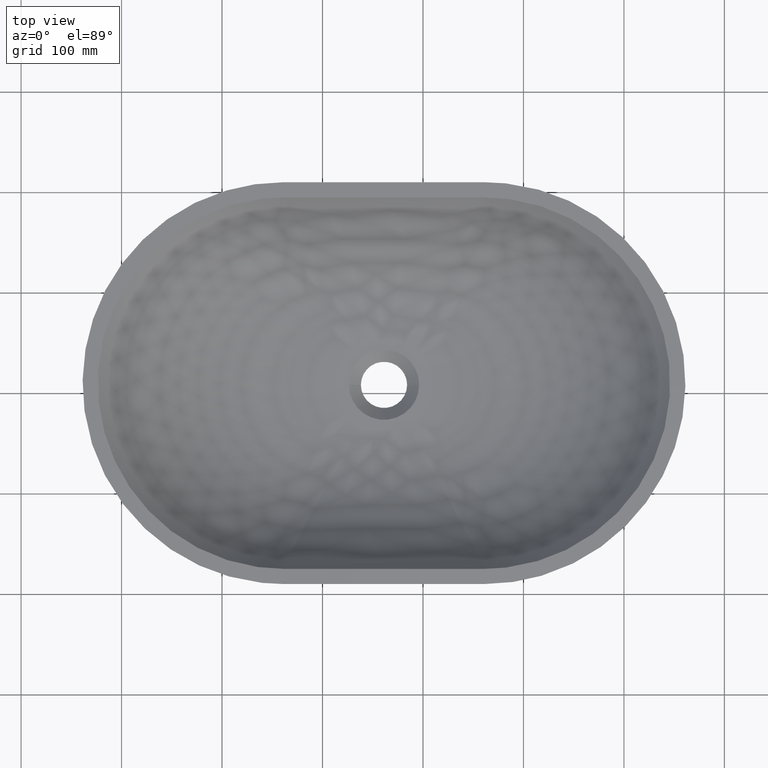
[diagram: clean part render]
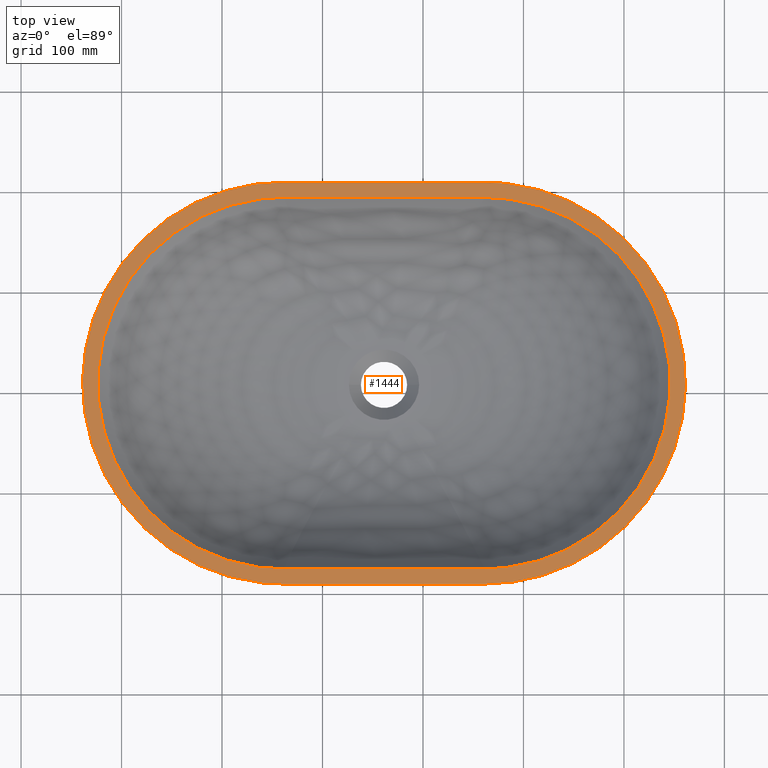
[diagram: same view with one face highlighted and labeled with its STEP entity id]
A machine part, top view. The second image highlights one B-rep face of the part: STEP entity #1444.
In plain terms, the highlighted planar face has unit normal (0, 0, 1).
Its self-contained STEP definition (entity closure, byte-faithful):
#5 = VECTOR ( 'NONE', #545, 1000.000000000000000 ) ;
#10 = VERTEX_POINT ( 'NONE', #504 ) ;
#25 = VERTEX_POINT ( 'NONE', #989 ) ;
#34 = CARTESIAN_POINT ( 'NONE',  ( -60.61192556270950100, 148.7361464839234500, 115.1817957095351900 ) ) ;
#40 = CARTESIAN_POINT ( 'NONE',  ( 56.49416635617522800, 193.3661969212668300, 115.1817957095351800 ) ) ;
#53 = VERTEX_POINT ( 'NONE', #741 ) ;
#57 = CARTESIAN_POINT ( 'NONE',  ( 61.25352625135712300, 193.3659434360993400, 115.1817957095353500 ) ) ;
#64 = CARTESIAN_POINT ( 'NONE',  ( 10.74161822885639800, 203.1963136500938800, 115.1817957095417900 ) ) ;
#67 = CARTESIAN_POINT ( 'NONE',  ( 16.58033270171394900, 188.6821975297097300, 115.1817957095351700 ) ) ;
#99 = VERTEX_POINT ( 'NONE', #1542 ) ;
#118 = CARTESIAN_POINT ( 'NONE',  ( 461.5336809680192700, -11.70850152895343900, 115.1817957095416500 ) ) ;
#128 = EDGE_LOOP ( 'NONE', ( #597, #990, #874, #1187 ) ) ;
#129 = CARTESIAN_POINT ( 'NONE',  ( 438.2409383776819100, 104.1543125189290300, 115.1817957095416000 ) ) ;
#131 = CARTESIAN_POINT ( 'NONE',  ( -71.63758920375836700, 159.0235303197477200, 115.1817957095417900 ) ) ;
#138 = CARTESIAN_POINT ( 'NONE',  ( 161.1991770534109200, -191.5128784895728100, 115.1817957095352100 ) ) ;
#152 = VECTOR ( 'NONE', #1399, 1000.000000000000000 ) ;
#167 = CARTESIAN_POINT ( 'NONE',  ( 261.1448278554648800, 193.3659434360993400, 115.1817957095353500 ) ) ;
#203 = CARTESIAN_POINT ( 'NONE',  ( 364.7927421914382100, 180.5526231723714500, 115.1817957095416000 ) ) ;
#207 = ORIENTED_EDGE ( 'NONE', *, *, #1083, .T. ) ;
#208 = CARTESIAN_POINT ( 'NONE',  ( 337.6708723989952400, 194.0228451808495400, 115.1817957095416500 ) ) ;
#212 = CARTESIAN_POINT ( 'NONE',  ( -56.78277687686650000, -135.7206937010476500, 115.1817957095351800 ) ) ;
#219 = CARTESIAN_POINT ( 'NONE',  ( -83.56933736362040600, 125.0717341970164000, 115.1817957095351400 ) ) ;
#232 = VERTEX_POINT ( 'NONE', #1113 ) ;
#239 = CARTESIAN_POINT ( 'NONE',  ( 453.5193352562616800, 67.98513829976954500, 115.1817957095416700 ) ) ;
#272 = CARTESIAN_POINT ( 'NONE',  ( -35.74889015185740200, 166.7909275831100300, 115.1817957095351200 ) ) ;
#273 = CARTESIAN_POINT ( 'NONE',  ( 285.1678583745950800, 207.3670872552345400, 115.1817957095416300 ) ) ;
#279 = CARTESIAN_POINT ( 'NONE',  ( 42.52687622973317600, 208.1928158879708000, 115.1817957095417900 ) ) ;
#285 = CARTESIAN_POINT ( 'NONE',  ( 308.1316243370708900, 203.7421003496828900, 115.1817957095416000 ) ) ;
#291 = VERTEX_POINT ( 'NONE', #1472 ) ;
#293 = CARTESIAN_POINT ( 'NONE',  ( 391.9406171353136900, 161.1548388170242000, 115.1817957095416200 ) ) ;
#304 = CARTESIAN_POINT ( 'NONE',  ( 265.9041877506471100, -176.3919539004494700, 115.1817957095352400 ) ) ;
#305 = B_SPLINE_CURVE_WITH_KNOTS ( 'NONE', 3,
 ( #725, #502, #899, #1134, #1227, #1371, #1512, #167 ),
 .UNSPECIFIED., .F., .F.,
 ( 4, 2, 2, 4 ),
 ( 0.0000000000000000000, 0.04997282542251418900, 0.1249320635562855800, 0.1998913016900569200 ),
 .UNSPECIFIED. ) ;
#310 = ORIENTED_EDGE ( 'NONE', *, *, #1411, .T. ) ;
#317 = CARTESIAN_POINT ( 'NONE',  ( 461.5300431340216400, 28.68215636889372200, 115.1817957095416300 ) ) ;
#347 = CARTESIAN_POINT ( 'NONE',  ( 425.1962089026555400, -79.18575149508822600, 115.1817957095352200 ) ) ;
#399 = CARTESIAN_POINT ( 'NONE',  ( 37.23077292421371000, -190.3928124741749700, 115.1817957095418200 ) ) ;
#410 = FACE_OUTER_BOUND ( 'NONE', #128, .T. ) ;
#415 = LINE ( 'NONE', #138, #152 ) ;
#416 = ORIENTED_EDGE ( 'NONE', *, *, #649, .T. ) ;
#424 = CARTESIAN_POINT ( 'NONE',  ( 279.3225402225500600, -176.0673003552144600, 115.1817957095352500 ) ) ;
#432 = CARTESIAN_POINT ( 'NONE',  ( -21.96305465923037700, 191.5028348330286600, 115.1817957095417900 ) ) ;
#461 = CARTESIAN_POINT ( 'NONE',  ( 58.81822467245670800, -191.5128784895763100, 115.1817957095418300 ) ) ;
#479 = CARTESIAN_POINT ( 'NONE',  ( 43.07581187548812800, 193.0410983710836200, 115.1817957095351800 ) ) ;
#481 = AXIS2_PLACEMENT_3D ( 'NONE', #1533, #1303, #1317 ) ;
#482 = CARTESIAN_POINT ( 'NONE',  ( -10.78688942976676100, 179.4376817148611600, 115.1817957095351800 ) ) ;
#484 = CARTESIAN_POINT ( 'NONE',  ( 43.07279658511280500, -176.0653268974612000, 115.1817957095351400 ) ) ;
#486 = CARTESIAN_POINT ( 'NONE',  ( -49.22370228021378600, 175.8340119829753400, 115.1817957095417900 ) ) ;
#488 = CARTESIAN_POINT ( 'NONE',  ( -23.01016818544261600, -157.8687333612659200, 115.1817957095351700 ) ) ;
#490 = CARTESIAN_POINT ( 'NONE',  ( 261.1991770534109500, 208.4871215104271900, 115.1817957095352100 ) ) ;
#491 = CARTESIAN_POINT ( 'NONE',  ( -83.56923668714137000, -108.0947487825566600, 115.1817957095352500 ) ) ;
#492 = CARTESIAN_POINT ( 'NONE',  ( 13.27293077981662400, -171.1633457057354800, 115.1817957095351800 ) ) ;
#497 = CARTESIAN_POINT ( 'NONE',  ( -102.7978964869850100, 96.16015365069269200, 115.1817957095351200 ) ) ;
#502 = CARTESIAN_POINT ( 'NONE',  ( 77.91128658456533200, 193.3650619584009900, 115.1817957095351900 ) ) ;
#503 = CARTESIAN_POINT ( 'NONE',  ( -116.6687985316302700, 62.97149256976440800, 115.1817957095351700 ) ) ;
#504 = CARTESIAN_POINT ( 'NONE',  ( 61.19917705341095600, -191.5128784895728100, 115.1817957095352100 ) ) ;
#507 = CARTESIAN_POINT ( 'NONE',  ( -123.9329679121835100, 26.97352634829886100, 115.1817957095351900 ) ) ;
#514 = CARTESIAN_POINT ( 'NONE',  ( -123.9360966759568800, -9.999735005459843500, 115.1817957095351900 ) ) ;
#518 = CARTESIAN_POINT ( 'NONE',  ( -116.6666459752446300, -45.99517196044517700, 115.1817957095352400 ) ) ;
#519 = CARTESIAN_POINT ( 'NONE',  ( 56.49416607286459400, -176.3919538216564400, 115.1817957095351800 ) ) ;
#520 = CARTESIAN_POINT ( 'NONE',  ( -102.7977174638970400, -79.18967452623115800, 115.1817957095351400 ) ) ;
#537 = VERTEX_POINT ( 'NONE', #585 ) ;
#545 = DIRECTION ( 'NONE',  ( -1.000000000000000000, -0.0000000000000000000, 0.0000000000000000000 ) ) ;
#585 = CARTESIAN_POINT ( 'NONE',  ( 61.25352625135712300, 193.3659434360993400, 115.1817957095353500 ) ) ;
#597 = ORIENTED_EDGE ( 'NONE', *, *, #1000, .T. ) ;
#599 = B_SPLINE_CURVE_WITH_KNOTS ( 'NONE', 3,
 ( #1375, #1491, #1087, #636, #1380, #1235, #1105, #1476, #1108, #656, #118, #317, #239, #129, #818, #293, #203, #208, #285, #273, #715, #1397, #490 ),
 .UNSPECIFIED., .F., .F.,
 ( 4, 1, 1, 1, 1, 1, 1, 1, 1, 1, 1, 1, 1, 1, 1, 1, 1, 1, 1, 1, 4 ),
 ( 0.0000000000000000000, 0.04446632552540475500, 0.08893265105080958000, 0.1333989765762143800, 0.1556321393389167600, 0.1778653021016191600, 0.2075095191185556100, 0.2371537361354921800, 0.2667979531524286600, 0.2964421701693651900, 0.3260863871863016700, 0.3557306042032381500, 0.3853748212201746900, 0.4150190382371112300, 0.4446632552540477100, 0.4743074722709841900, 0.5039516892879207800, 0.5335959063048573100, 0.5780622318302620600, 0.6002953945929644400, 0.6225285573556668100 ),
 .UNSPECIFIED. ) ;
#617 = CARTESIAN_POINT ( 'NONE',  ( 161.1991916407784500, -176.3888257209593700, 115.1817957095352400 ) ) ;
#636 = CARTESIAN_POINT ( 'NONE',  ( 311.6569166749463900, -186.2220926743774800, 115.1817957095416000 ) ) ;
#649 = EDGE_CURVE ( 'NONE', #291, #1388, #815, .T. ) ;
#656 = CARTESIAN_POINT ( 'NONE',  ( 453.5178303870797500, -51.01084979318945800, 115.1817957095416300 ) ) ;
#690 = CARTESIAN_POINT ( 'NONE',  ( 261.1448278554647100, -176.3917004152449700, 115.1817957095353900 ) ) ;
#692 = CARTESIAN_POINT ( 'NONE',  ( 439.0648198194157300, 62.96958976007968500, 115.1817957095351900 ) ) ;
#705 = CARTESIAN_POINT ( 'NONE',  ( 161.1991770534109500, 208.4871215104271900, 115.1817957095352100 ) ) ;
#713 = CARTESIAN_POINT ( 'NONE',  ( 446.3344963352358300, 26.97441046883320900, 115.1817957095352400 ) ) ;
#715 = CARTESIAN_POINT ( 'NONE',  ( 269.4386677526191500, 208.4058809125665400, 115.1817957095415600 ) ) ;
#725 = CARTESIAN_POINT ( 'NONE',  ( 61.25352625135712300, 193.3659434360993400, 115.1817957095353500 ) ) ;
#728 = EDGE_CURVE ( 'NONE', #53, #99, #599, .T. ) ;
#731 = CARTESIAN_POINT ( 'NONE',  ( 56.43727229150431400, 208.4871215104307700, 115.1817957095418300 ) ) ;
#735 = CARTESIAN_POINT ( 'NONE',  ( 61.19917705341097000, 208.4871215104271900, 115.1817957095352100 ) ) ;
#736 = CARTESIAN_POINT ( 'NONE',  ( 61.25352625135710800, -176.3917004152449700, 115.1817957095353500 ) ) ;
#741 = CARTESIAN_POINT ( 'NONE',  ( 261.1991770534108400, -191.5128784895728100, 115.1817957095352100 ) ) ;
#743 = CARTESIAN_POINT ( 'NONE',  ( 358.1473053572506700, -149.8167725658331100, 115.1817957095352200 ) ) ;
#793 = CARTESIAN_POINT ( 'NONE',  ( 261.1448278554647100, -176.3917004152449700, 115.1817957095353900 ) ) ;
#805 = CARTESIAN_POINT ( 'NONE',  ( 244.4870675222565200, -176.3908189375466400, 115.1817957095352400 ) ) ;
#815 = B_SPLINE_CURVE_WITH_KNOTS ( 'NONE', 3,
 ( #1367, #890, #1082, #1202, #1140, #1269, #1251, #1363, #692, #713, #1079, #1330, #347, #1457, #925, #743, #1205, #905, #424, #304, #690 ),
 .UNSPECIFIED., .F., .F.,
 ( 4, 1, 1, 1, 1, 1, 1, 1, 1, 1, 1, 1, 1, 1, 1, 1, 1, 1, 4 ),
 ( 0.0000000000000000000, 0.04133533060371028000, 0.08267066120742062900, 0.1240059918111309800, 0.1653413224148412600, 0.1928982094839814300, 0.2204550965531216500, 0.2480119836222618200, 0.2755688706914020700, 0.3031257577605422400, 0.3306826448296824000, 0.3582395318988226300, 0.3857964189679628500, 0.4133533060371030200, 0.4409101931062431900, 0.4684670801753834100, 0.4960239672445236300, 0.5373592978482338900, 0.5786946284519441900 ),
 .UNSPECIFIED. ) ;
#818 = CARTESIAN_POINT ( 'NONE',  ( 417.1042020559526100, 135.5640569853788100, 115.1817957095416200 ) ) ;
#847 = FACE_BOUND ( 'NONE', #1168, .T. ) ;
#860 = CARTESIAN_POINT ( 'NONE',  ( -131.1194860979992100, 67.98496691828391600, 115.1817957095417700 ) ) ;
#874 = ORIENTED_EDGE ( 'NONE', *, *, #1110, .T. ) ;
#878 = CARTESIAN_POINT ( 'NONE',  ( -115.8430996472398100, 104.1556655501851800, 115.1817957095417900 ) ) ;
#890 = CARTESIAN_POINT ( 'NONE',  ( 265.9041880337533100, 193.3661968537024900, 115.1817957095352400 ) ) ;
#899 = CARTESIAN_POINT ( 'NONE',  ( 94.56893450332880500, 193.3643827014639700, 115.1817957095351900 ) ) ;
#905 = CARTESIAN_POINT ( 'NONE',  ( 305.8180387162530000, -171.7082193614270700, 115.1817957095352400 ) ) ;
#908 = CARTESIAN_POINT ( 'NONE',  ( 86.24016675116946800, -176.3903781986974800, 115.1817957095352400 ) ) ;
#925 = CARTESIAN_POINT ( 'NONE',  ( 383.0103344354116600, -131.7619236983447600, 115.1817957095352400 ) ) ;
#928 = EDGE_CURVE ( 'NONE', #25, #537, #1322, .T. ) ;
#931 = CARTESIAN_POINT ( 'NONE',  ( -139.1352871784866900, 28.68264538898372600, 115.1817957095418300 ) ) ;
#936 = CARTESIAN_POINT ( 'NONE',  ( -94.70480956048398000, 135.5632534018114700, 115.1817957095417700 ) ) ;
#985 = CARTESIAN_POINT ( 'NONE',  ( -69.54234035034770000, -144.1805549412160600, 115.1817957095417700 ) ) ;
#989 = CARTESIAN_POINT ( 'NONE',  ( 61.25352625135710800, -176.3917004152449700, 115.1817957095353500 ) ) ;
#990 = ORIENTED_EDGE ( 'NONE', *, *, #728, .T. ) ;
#995 = CARTESIAN_POINT ( 'NONE',  ( 61.19917705341095600, -191.5128784895728100, 115.1817957095352100 ) ) ;
#1000 = EDGE_CURVE ( 'NONE', #10, #53, #415, .T. ) ;
#1020 = EDGE_CURVE ( 'NONE', #232, #10, #1334, .T. ) ;
#1027 = LINE ( 'NONE', #705, #5 ) ;
#1036 = B_SPLINE_CURVE_WITH_KNOTS ( 'NONE', 3,
 ( #793, #805, #1170, #1540, #617, #1530, #908, #1212 ),
 .UNSPECIFIED., .F., .F.,
 ( 4, 2, 2, 4 ),
 ( 0.0000000000000000000, 0.04997282542251421700, 0.1249320635562855000, 0.1998913016900568700 ),
 .UNSPECIFIED. ) ;
#1079 = CARTESIAN_POINT ( 'NONE',  ( 446.3311698784637000, -9.999131604614058600, 115.1817957095351900 ) ) ;
#1082 = CARTESIAN_POINT ( 'NONE',  ( 279.3257102002136200, 193.0396114092008300, 115.1817957095352400 ) ) ;
#1083 = EDGE_CURVE ( 'NONE', #537, #291, #305, .T. ) ;
#1087 = CARTESIAN_POINT ( 'NONE',  ( 279.8716070780013800, -191.2189114930829700, 115.1817957095416900 ) ) ;
#1105 = CARTESIAN_POINT ( 'NONE',  ( 394.0358852470306500, -142.0494228537468200, 115.1817957095416300 ) ) ;
#1108 = CARTESIAN_POINT ( 'NONE',  ( 438.2413555912855300, -87.18150123071987400, 115.1817957095416500 ) ) ;
#1110 = EDGE_CURVE ( 'NONE', #99, #232, #1027, .T. ) ;
#1113 = CARTESIAN_POINT ( 'NONE',  ( 61.19917705341097000, 208.4871215104271900, 115.1817957095352100 ) ) ;
#1115 = CARTESIAN_POINT ( 'NONE',  ( 261.1448278554647100, -176.3917004152449700, 115.1817957095353900 ) ) ;
#1124 = CARTESIAN_POINT ( 'NONE',  ( 52.95981156355688300, -191.4316134414218300, 115.1817957095418600 ) ) ;
#1134 = CARTESIAN_POINT ( 'NONE',  ( 136.2129086816300100, 193.3632443441196900, 115.1817957095351900 ) ) ;
#1140 = CARTESIAN_POINT ( 'NONE',  ( 345.4086248373045000, 174.8425716759024100, 115.1817957095352400 ) ) ;
#1158 = CARTESIAN_POINT ( 'NONE',  ( -131.1209358780194200, -51.01097972775951200, 115.1817957095418300 ) ) ;
#1168 = EDGE_LOOP ( 'NONE', ( #416, #310, #1261, #207 ) ) ;
#1170 = CARTESIAN_POINT ( 'NONE',  ( 227.8294196034930800, -176.3901396806096200, 115.1817957095352400 ) ) ;
#1175 = CARTESIAN_POINT ( 'NONE',  ( -115.8426147502135600, -87.18021966931651400, 115.1817957095417700 ) ) ;
#1187 = ORIENTED_EDGE ( 'NONE', *, *, #1020, .T. ) ;
#1189 = CARTESIAN_POINT ( 'NONE',  ( -15.27307076551358400, -177.0482148157207700, 115.1817957095418200 ) ) ;
#1202 = CARTESIAN_POINT ( 'NONE',  ( 309.1256268442472200, 188.1373668603124300, 115.1817957095352500 ) ) ;
#1205 = CARTESIAN_POINT ( 'NONE',  ( 333.1852031347311300, -162.4637020082662400, 115.1817957095352400 ) ) ;
#1212 = CARTESIAN_POINT ( 'NONE',  ( 61.25352625135710800, -176.3917004152449700, 115.1817957095353500 ) ) ;
#1218 = CARTESIAN_POINT ( 'NONE',  ( -94.70574496224260500, -118.5898889193056200, 115.1817957095418400 ) ) ;
#1225 = CARTESIAN_POINT ( 'NONE',  ( -139.1317748500289600, -11.70801265905609300, 115.1817957095418400 ) ) ;
#1227 = CARTESIAN_POINT ( 'NONE',  ( 161.1991624660434500, 193.3630687418137200, 115.1817957095351900 ) ) ;
#1235 = CARTESIAN_POINT ( 'NONE',  ( 371.6220459010667100, -158.8599271650874100, 115.1817957095416200 ) ) ;
#1251 = CARTESIAN_POINT ( 'NONE',  ( 405.9672464215202000, 125.0689875127428900, 115.1817957095352200 ) ) ;
#1261 = ORIENTED_EDGE ( 'NONE', *, *, #928, .T. ) ;
#1269 = CARTESIAN_POINT ( 'NONE',  ( 379.1810891621314600, 152.6952077585169400, 115.1817957095352500 ) ) ;
#1272 = PLANE ( 'NONE',  #481 ) ;
#1303 = DIRECTION ( 'NONE',  ( 0.0000000000000000000, 0.0000000000000000000, 1.000000000000000000 ) ) ;
#1317 = DIRECTION ( 'NONE',  ( 1.000000000000000000, 0.0000000000000000000, -0.0000000000000000000 ) ) ;
#1322 = B_SPLINE_CURVE_WITH_KNOTS ( 'NONE', 3,
 ( #736, #519, #484, #492, #488, #212, #491, #520, #518, #514, #507, #503, #497, #219, #34, #272, #482, #67, #479, #40, #57 ),
 .UNSPECIFIED., .F., .F.,
 ( 4, 1, 1, 1, 1, 1, 1, 1, 1, 1, 1, 1, 1, 1, 1, 1, 1, 1, 4 ),
 ( 0.0000000000000000000, 0.04133513235021393100, 0.08267026470042793100, 0.1240053970506419200, 0.1653405294008558600, 0.1928972843009984500, 0.2204540392011411200, 0.2480107941012837100, 0.2755675490014263800, 0.3031243039015689700, 0.3306810588017115600, 0.3582378137018542600, 0.3857945686019969000, 0.4133513235021394900, 0.4409080784022821300, 0.4684648333024247800, 0.4960215882025674200, 0.5373567205527813900, 0.5786918529029953000 ),
 .UNSPECIFIED. ) ;
#1330 = CARTESIAN_POINT ( 'NONE',  ( 439.0671543671018600, -45.99706462106902200, 115.1817957095352400 ) ) ;
#1334 = B_SPLINE_CURVE_WITH_KNOTS ( 'NONE', 3,
 ( #735, #731, #279, #64, #432, #486, #131, #936, #878, #860, #931, #1225, #1158, #1175, #1218, #985, #1423, #1189, #1383, #399, #1124, #461, #995 ),
 .UNSPECIFIED., .F., .F.,
 ( 4, 1, 1, 1, 1, 1, 1, 1, 1, 1, 1, 1, 1, 1, 1, 1, 1, 1, 1, 1, 4 ),
 ( 0.0000000000000000000, 0.04446687870297847500, 0.08893375740595702000, 0.1334006361089355700, 0.1556340754604247900, 0.1778675148119140400, 0.2075121006138996600, 0.2371566864158853600, 0.2668012722178709800, 0.2964458580198566800, 0.3260904438218423200, 0.3557350296238279700, 0.3853796154258136700, 0.4150242012277993200, 0.4446687870297849600, 0.4743133728317706100, 0.5039579586337562500, 0.5336025444357419500, 0.5780694231387204500, 0.6003028624902097000, 0.6225363018416989500 ),
 .UNSPECIFIED. ) ;
#1363 = CARTESIAN_POINT ( 'NONE',  ( 425.1965757820983100, 96.16574351693498100, 115.1817957095352400 ) ) ;
#1367 = CARTESIAN_POINT ( 'NONE',  ( 261.1448278554648800, 193.3659434360993400, 115.1817957095353500 ) ) ;
#1371 = CARTESIAN_POINT ( 'NONE',  ( 211.1718008631997900, 193.3637572995139900, 115.1817957095351900 ) ) ;
#1375 = CARTESIAN_POINT ( 'NONE',  ( 261.1991770534108400, -191.5128784895728100, 115.1817957095352100 ) ) ;
#1380 = CARTESIAN_POINT ( 'NONE',  ( 344.3614970476119800, -174.5286520420284500, 115.1817957095416300 ) ) ;
#1383 = CARTESIAN_POINT ( 'NONE',  ( 14.26762995109548800, -186.7680265341831200, 115.1817957095418400 ) ) ;
#1388 = VERTEX_POINT ( 'NONE', #1115 ) ;
#1397 = CARTESIAN_POINT ( 'NONE',  ( 263.5801294343651800, 208.4871215104306300, 115.1817957095416200 ) ) ;
#1399 = DIRECTION ( 'NONE',  ( 1.000000000000000000, -0.0000000000000000000, -0.0000000000000000000 ) ) ;
#1411 = EDGE_CURVE ( 'NONE', #1388, #25, #1036, .T. ) ;
#1423 = CARTESIAN_POINT ( 'NONE',  ( -42.39415669833131500, -163.5784327464562900, 115.1817957095418200 ) ) ;
#1444 = ADVANCED_FACE ( 'NONE', ( #410, #847 ), #1272, .T. ) ;
#1457 = CARTESIAN_POINT ( 'NONE',  ( 405.9677358684787100, -108.0974049491730000, 115.1817957095352200 ) ) ;
#1472 = CARTESIAN_POINT ( 'NONE',  ( 261.1448278554648800, 193.3659434360993400, 115.1817957095353500 ) ) ;
#1476 = CARTESIAN_POINT ( 'NONE',  ( 417.1030594803969500, -118.5891327006306900, 115.1817957095416300 ) ) ;
#1491 = CARTESIAN_POINT ( 'NONE',  ( 265.9610818153174700, -191.5128784895763100, 115.1817957095416200 ) ) ;
#1512 = CARTESIAN_POINT ( 'NONE',  ( 236.1581873556524400, 193.3646212195518200, 115.1817957095351900 ) ) ;
#1530 = CARTESIAN_POINT ( 'NONE',  ( 111.2265532436221500, -176.3895142786597000, 115.1817957095352400 ) ) ;
#1533 = CARTESIAN_POINT ( 'NONE',  ( 161.1991770534109500, 8.487121510427194000, 115.1817957095352100 ) ) ;
#1540 = CARTESIAN_POINT ( 'NONE',  ( 186.1854454251918600, -176.3890013232653500, 115.1817957095352400 ) ) ;
#1542 = CARTESIAN_POINT ( 'NONE',  ( 261.1991770534109500, 208.4871215104271900, 115.1817957095352100 ) ) ;